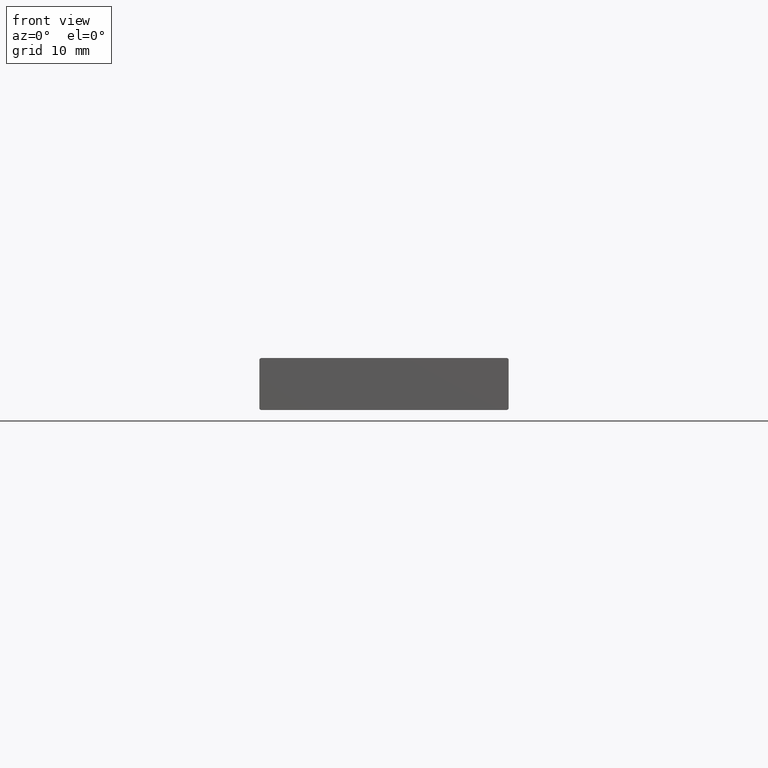
[diagram: clean part render]
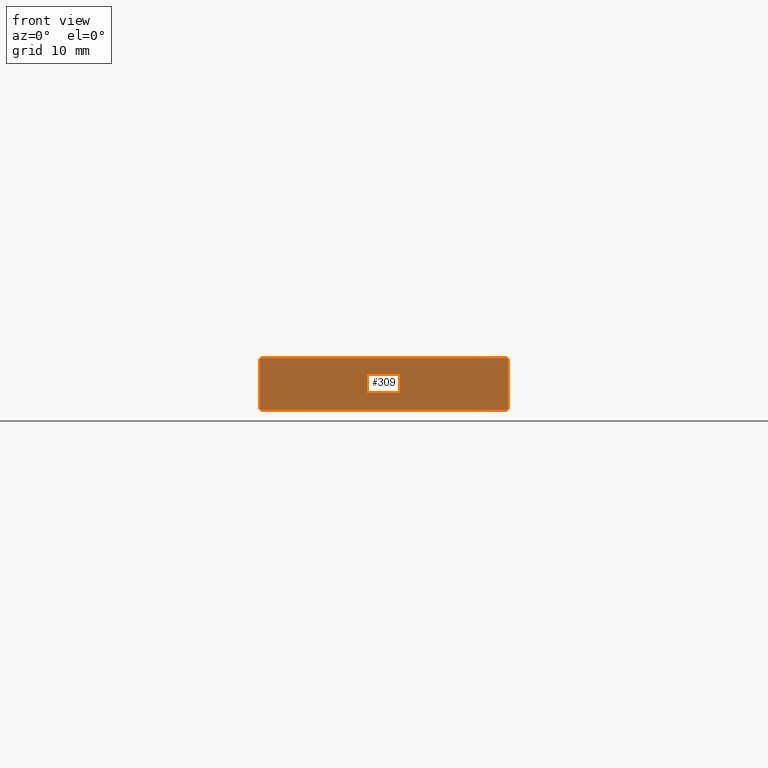
[diagram: same view with one face highlighted and labeled with its STEP entity id]
A machine part, front view. The second image highlights one B-rep face of the part: STEP entity #309.
In plain terms, the highlighted planar face has unit normal (0, -1, -0).
Its self-contained STEP definition (entity closure, byte-faithful):
#22=PLANE('',#336);
#38=LINE('',#457,#54);
#39=LINE('',#459,#55);
#40=LINE('',#460,#56);
#41=LINE('',#461,#57);
#54=VECTOR('',#391,1000.);
#55=VECTOR('',#394,1000.);
#56=VECTOR('',#395,1000.);
#57=VECTOR('',#396,1000.);
#88=ORIENTED_EDGE('',*,*,#137,.T.);
#89=ORIENTED_EDGE('',*,*,#116,.T.);
#90=ORIENTED_EDGE('',*,*,#136,.F.);
#91=ORIENTED_EDGE('',*,*,#128,.T.);
#92=ORIENTED_EDGE('',*,*,#138,.F.);
#93=ORIENTED_EDGE('',*,*,#118,.T.);
#94=ORIENTED_EDGE('',*,*,#139,.T.);
#95=ORIENTED_EDGE('',*,*,#122,.T.);
#116=EDGE_CURVE('',#145,#144,#163,.T.);
#118=EDGE_CURVE('',#146,#147,#164,.T.);
#122=EDGE_CURVE('',#150,#151,#166,.T.);
#128=EDGE_CURVE('',#157,#156,#169,.T.);
#136=EDGE_CURVE('',#157,#144,#38,.T.);
#137=EDGE_CURVE('',#151,#145,#39,.T.);
#138=EDGE_CURVE('',#146,#156,#40,.T.);
#139=EDGE_CURVE('',#147,#150,#41,.T.);
#144=VERTEX_POINT('',#415);
#145=VERTEX_POINT('',#417);
#146=VERTEX_POINT('',#421);
#147=VERTEX_POINT('',#422);
#150=VERTEX_POINT('',#430);
#151=VERTEX_POINT('',#431);
#156=VERTEX_POINT('',#442);
#157=VERTEX_POINT('',#444);
#163=CIRCLE('',#321,0.2);
#164=CIRCLE('',#323,0.2);
#166=CIRCLE('',#326,0.2);
#169=CIRCLE('',#330,0.2);
#182=EDGE_LOOP('',(#88,#89,#90,#91,#92,#93,#94,#95));
#200=FACE_BOUND('',#182,.T.);
#309=ADVANCED_FACE('',(#200),#22,.T.);
#321=AXIS2_PLACEMENT_3D('',#416,#350,#351);
#323=AXIS2_PLACEMENT_3D('',#420,#355,#356);
#326=AXIS2_PLACEMENT_3D('',#429,#363,#364);
#330=AXIS2_PLACEMENT_3D('',#443,#374,#375);
#336=AXIS2_PLACEMENT_3D('',#458,#392,#393);
#350=DIRECTION('',(0.,-1.,-1.49186218934005E-16));
#351=DIRECTION('',(0.,1.49186218934005E-16,-1.));
#355=DIRECTION('',(0.,-1.,-1.49186218934005E-16));
#356=DIRECTION('',(0.,1.49186218934005E-16,-1.));
#363=DIRECTION('',(0.,-1.,-1.49186218934005E-16));
#364=DIRECTION('',(0.,1.49186218934005E-16,-1.));
#374=DIRECTION('',(0.,-1.,-1.49186218934005E-16));
#375=DIRECTION('',(0.,1.49186218934005E-16,-1.));
#391=DIRECTION('',(1.49186218934005E-16,1.49186218934005E-16,-1.));
#392=DIRECTION('',(0.,-1.,-1.49186218934005E-16));
#393=DIRECTION('',(1.,-2.2256527919825E-32,1.49186218934005E-16));
#394=DIRECTION('',(1.,-2.2256527919825E-32,1.49186218934005E-16));
#395=DIRECTION('',(1.,-2.2256527919825E-32,1.49186218934005E-16));
#396=DIRECTION('',(1.49186218934005E-16,1.49186218934005E-16,-1.));
#415=CARTESIAN_POINT('',(24.,7.16093850883224E-16,0.199999999999735));
#416=CARTESIAN_POINT('',(23.8,0.,0.199999999999736));
#417=CARTESIAN_POINT('',(23.8,-5.42836715964532E-31,-2.63508763420628E-13));
#420=CARTESIAN_POINT('',(0.2,0.,4.79999999999973));
#421=CARTESIAN_POINT('',(0.2,-1.75826570566617E-32,4.99999999999973));
#422=CARTESIAN_POINT('',(2.98372437868008E-17,2.98372437868008E-17,4.79999999999973));
#429=CARTESIAN_POINT('',(0.199999999999999,0.,0.199999999999732));
#430=CARTESIAN_POINT('',(7.16093850883224E-16,7.16093850883224E-16,0.199999999999732));
#431=CARTESIAN_POINT('',(0.199999999999999,-1.75826570566617E-32,-2.6702955818747E-13));
#442=CARTESIAN_POINT('',(23.8,-5.42836715964532E-31,4.99999999999973));
#443=CARTESIAN_POINT('',(23.8,2.98372437868003E-17,4.79999999999974));
#444=CARTESIAN_POINT('',(24.,2.98372437868011E-17,4.79999999999974));
#457=CARTESIAN_POINT('',(24.,0.,4.99999999999974));
#458=CARTESIAN_POINT('',(-0.589999999999997,0.,4.99999999999973));
#459=CARTESIAN_POINT('',(-0.589999999999997,0.,-2.67147415300428E-13));
#460=CARTESIAN_POINT('',(-0.589999999999997,0.,4.99999999999973));
#461=CARTESIAN_POINT('',(0.,0.,4.99999999999973));